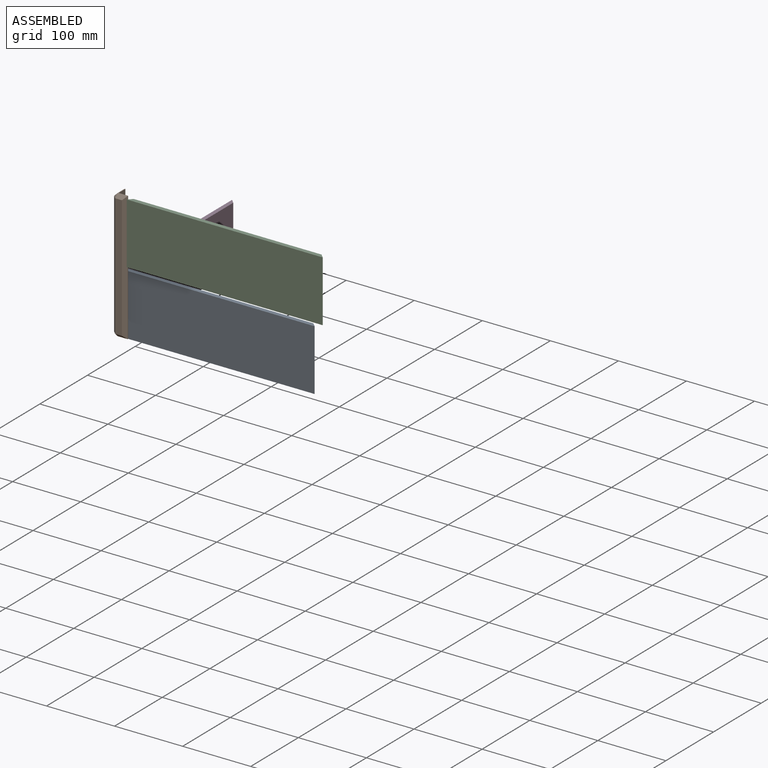
[diagram: assembled view]
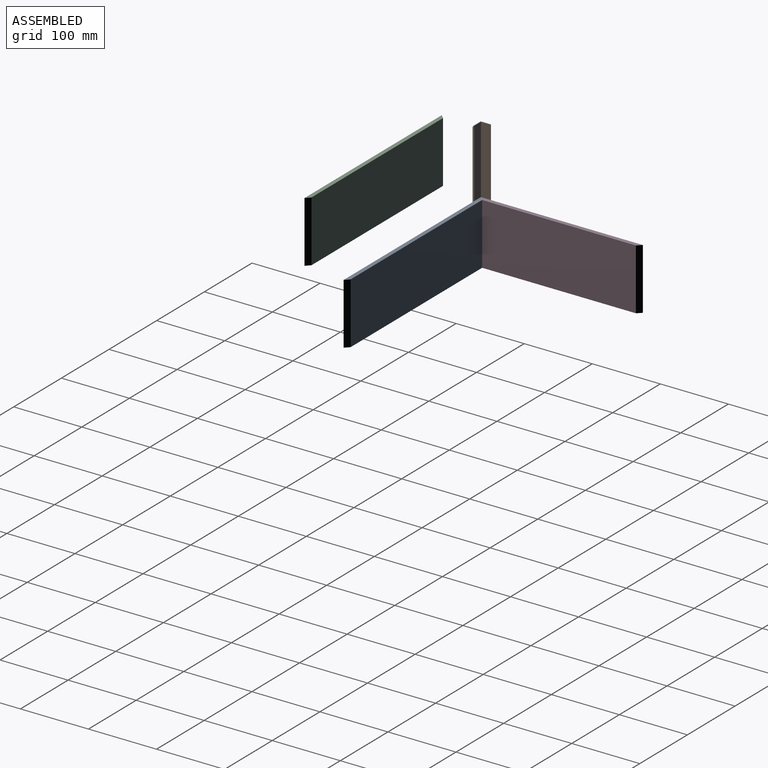
[diagram: assembled view, second angle]
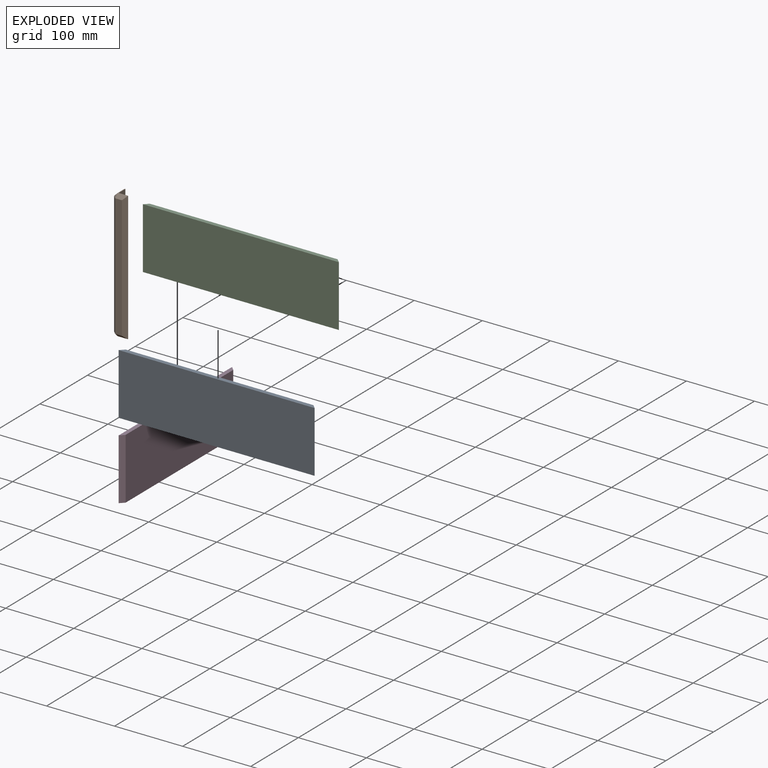
[diagram: exploded view]
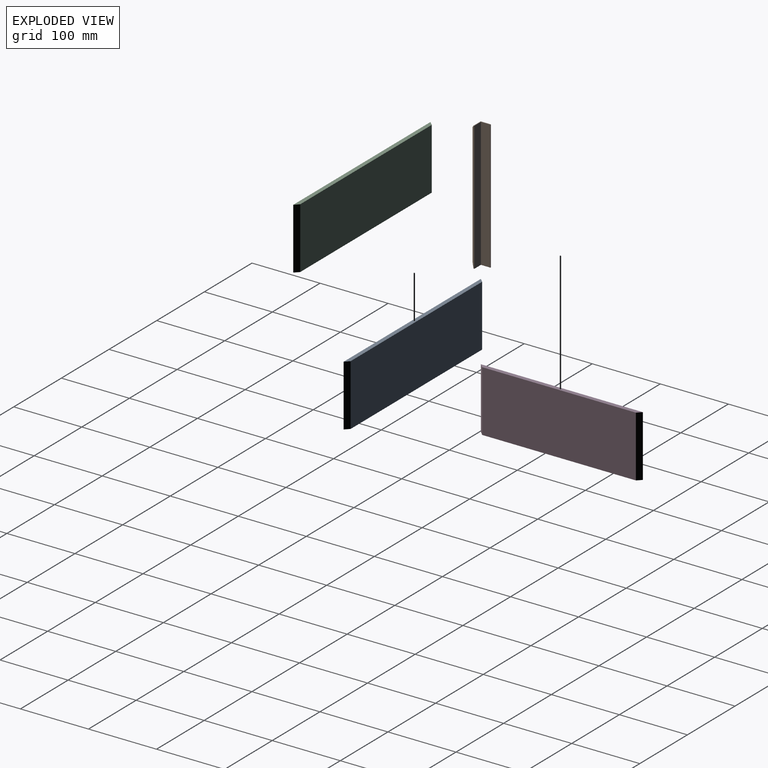
[diagram: exploded view, second angle]
ASSEMBLY  parts=4 mates=2
PART A: 6 faces, bbox 288x6x90 mm
  f0: plane 288x6mm, normal (0,0,-1), area 1692mm2, adj f2,f3,f4,f5
  f1: plane 288x6mm, normal (0,0,1), area 1692mm2, adj f2,f3,f4,f5
  f2: plane 276x90mm, normal (0,1,0), area 24840mm2, adj f0,f1,f4,f5
  f3: plane 288x90mm, normal (0,-1,0), area 25920mm2, adj f0,f1,f4,f5
  f4: plane 90x6mm, normal (-0.71,0.71,0), area 763.7mm2, adj f0,f1,f2,f3
  f5: plane 90x6mm, normal (0.71,0.71,0), area 763.7mm2, adj f0,f1,f2,f3
PART B: 17 faces, bbox 20x20x190 mm
  f0: plane 190x1mm, normal (0,1,0), area 190mm2, adj f1,f3,f7,f16
  f1: plane 15x15mm, normal (0,0,-1), area 29mm2, adj f0,f2,f6,f7,f9,f14
  f2: plane 190x1mm, normal (1,0,0), area 190mm2, adj f1,f3,f6,f8
  f3: plane 15x15mm, normal (0,0,1), area 29mm2, adj f0,f2,f6,f7,f10,f15
  f4: plane 180x10mm, normal (-1,0,0), area 1800mm2, adj f11,f14,f15,f16
  f5: plane 180x10mm, normal (0,-1,0), area 1800mm2, adj f8,f9,f10,f11
  f6: plane 190x14mm, normal (0,1,0), area 2660mm2, adj f1,f2,f3,f7
  f7: plane 190x14mm, normal (1,0,0), area 2660mm2, adj f0,f1,f3,f6
  f8: plane 190x5mm, normal (0.71,-0.71,0), area 1308.1mm2, adj f2,f5,f9,f10
  f9: plane 15x5mm, normal (0,-0.71,-0.71), area 88.4mm2, adj f1,f5,f8,f12
  f10: plane 15x5mm, normal (0,-0.71,0.71), area 88.4mm2, adj f3,f5,f8,f13
  f11: plane 180x5mm, normal (-0.71,-0.71,0), area 1272.8mm2, adj f4,f5,f12,f13
  f12: plane 5x5mm, normal (-0.58,-0.58,-0.58), area 21.7mm2, adj f9,f11,f14
  f13: plane 5x5mm, normal (-0.58,-0.58,0.58), area 21.7mm2, adj f10,f11,f15
  f14: plane 15x5mm, normal (-0.71,0,-0.71), area 88.4mm2, adj f1,f4,f12,f16
  f15: plane 15x5mm, normal (-0.71,0,0.71), area 88.4mm2, adj f3,f4,f13,f16
  f16: plane 190x5mm, normal (-0.71,0.71,0), area 1308.1mm2, adj f0,f4,f14,f15
PART C: same geometry as A
PART D: 6 faces, bbox 238x6x90 mm
  f0: plane 238x6mm, normal (0,0,-1), area 1392mm2, adj f2,f3,f4,f5
  f1: plane 238x6mm, normal (0,0,1), area 1392mm2, adj f2,f3,f4,f5
  f2: plane 226x90mm, normal (0,1,0), area 20340mm2, adj f0,f1,f4,f5
  f3: plane 238x90mm, normal (0,-1,0), area 21420mm2, adj f0,f1,f4,f5
  f4: plane 90x6mm, normal (-0.71,0.71,0), area 763.7mm2, adj f0,f1,f2,f3
  f5: plane 90x6mm, normal (0.71,0.71,0), area 763.7mm2, adj f0,f1,f2,f3
PLACE A t=(36.56,-83.52,7.25)mm
PLACE B t=(-237.44,-75.52,7.25)mm
PLACE C t=(71.61,-116.5,120.6)mm
PLACE D rot(axis=(-0.71,-0.71,0),180deg) t=(-245.44,148.48,97.25)mm
MATE slider A.f0 <-> B.f1  axis (0,0,1) through (-251.44,-89.52,7.25)mm
MATE slider D.f1 <-> B.f1  axis (0,0,-1) through (-251.44,-89.52,7.25)mm
